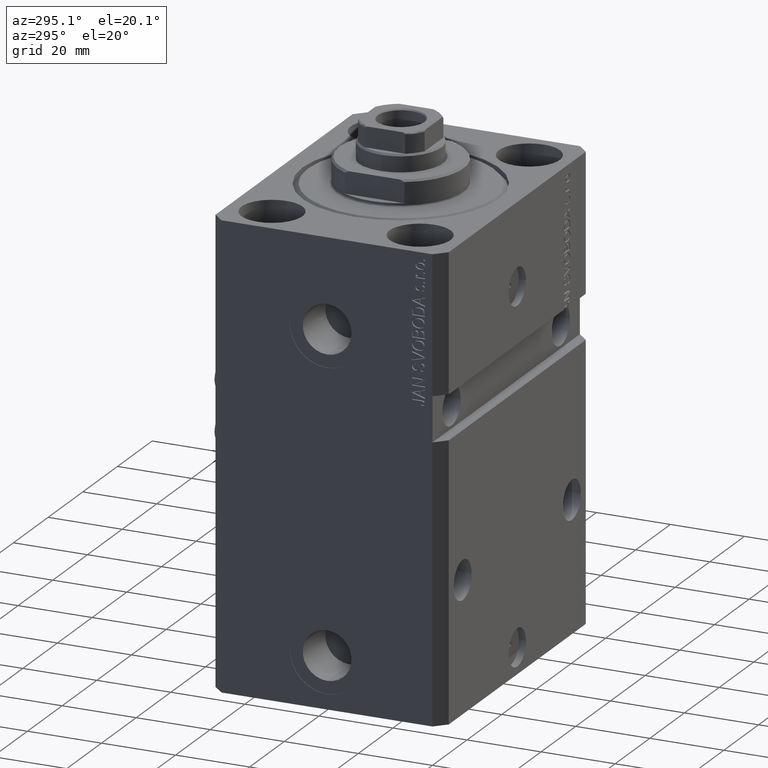
[diagram: clean part render]
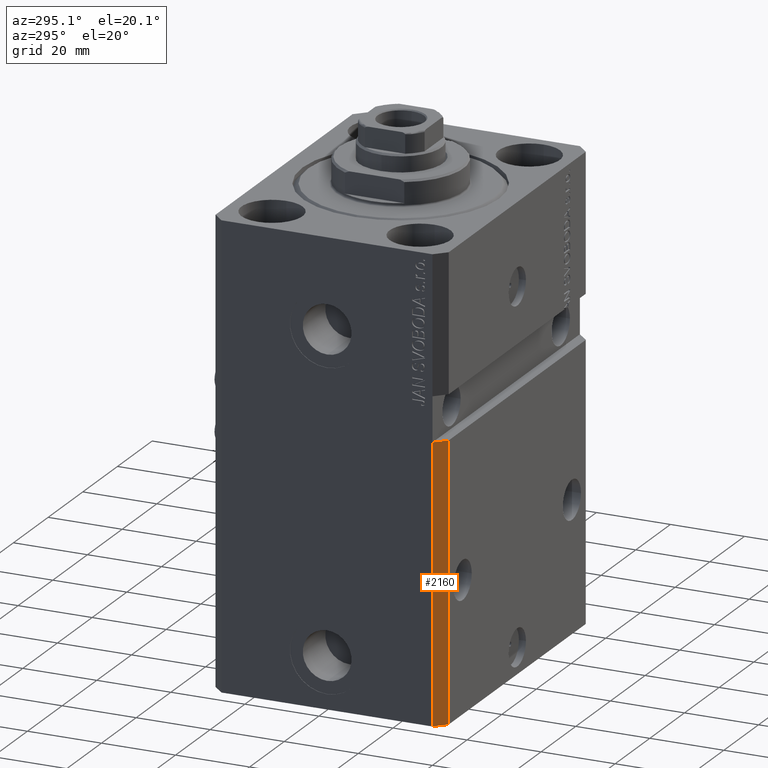
[diagram: same view with one face highlighted and labeled with its STEP entity id]
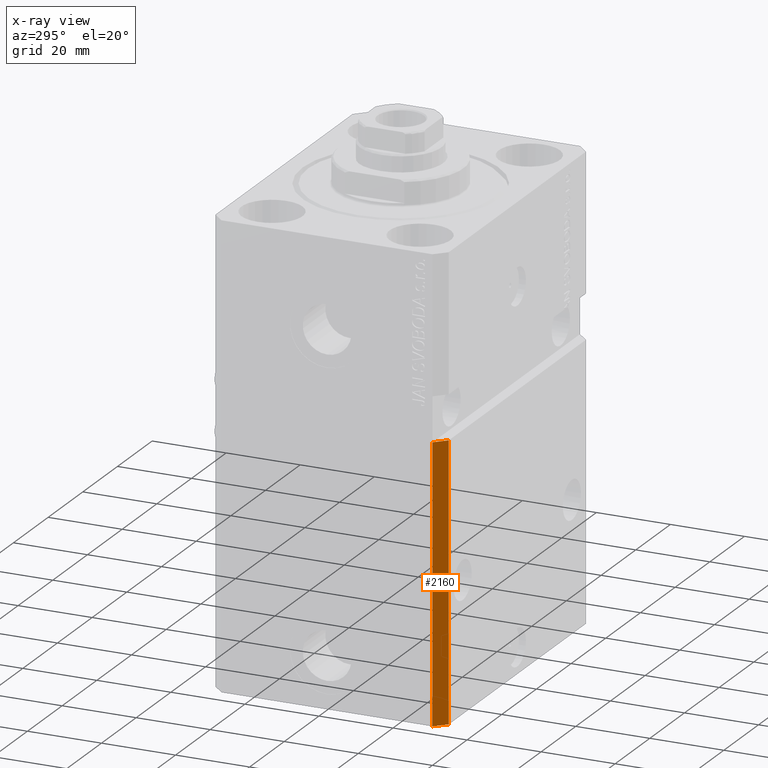
[diagram: x-ray of the same camera — body ghosted, the highlighted face saturated]
A machine part, auxiliary view. The second image highlights one B-rep face of the part: STEP entity #2160.
The next image is the same camera in x-ray: the body ghosted, the highlighted face saturated — about 0% of this face is hidden behind the body in this view.
In plain terms, the highlighted planar face has unit normal (-0.7071, -0.7071, 0).
Its self-contained STEP definition (entity closure, byte-faithful):
#460 = LINE ( 'NONE', #33769, #27978 ) ;
#861 = CARTESIAN_POINT ( 'NONE',  ( -39.50000000000000711, -31.50000000000000000, -123.0000000000000000 ) ) ;
#2160 = ADVANCED_FACE ( 'NONE', ( #13997 ), #28601, .T. ) ;
#2955 = CARTESIAN_POINT ( 'NONE',  ( -39.50000000000000711, -31.50000000000000000, -123.0000000000000000 ) ) ;
#4341 = DIRECTION ( 'NONE',  ( 0.7071067811865472397, -0.7071067811865479058, 1.154479749032186513E-16 ) ) ;
#4518 = LINE ( 'NONE', #861, #22707 ) ;
#5998 = CARTESIAN_POINT ( 'NONE',  ( -42.50000000000000000, -28.50000000000000000, -123.0000000000000000 ) ) ;
#7458 = DIRECTION ( 'NONE',  ( 0.000000000000000000, 0.000000000000000000, 1.000000000000000000 ) ) ;
#8069 = ORIENTED_EDGE ( 'NONE', *, *, #29650, .F. ) ;
#8545 = EDGE_CURVE ( 'NONE', #40215, #25680, #4518, .T. ) ;
#8748 = VERTEX_POINT ( 'NONE', #12849 ) ;
#10712 = EDGE_CURVE ( 'NONE', #8748, #40215, #11239, .T. ) ;
#11239 = LINE ( 'NONE', #36308, #33675 ) ;
#12849 = CARTESIAN_POINT ( 'NONE',  ( -42.50000000000000000, -28.50000000000000000, -123.0000000000000000 ) ) ;
#13544 = CARTESIAN_POINT ( 'NONE',  ( -39.50000000000000000, -31.50000000000000711, -48.99999999999999289 ) ) ;
#13997 = FACE_OUTER_BOUND ( 'NONE', #19574, .T. ) ;
#14711 = ORIENTED_EDGE ( 'NONE', *, *, #19463, .F. ) ;
#15620 = AXIS2_PLACEMENT_3D ( 'NONE', #5998, #29064, #43666 ) ;
#19463 = EDGE_CURVE ( 'NONE', #20149, #25680, #460, .T. ) ;
#19574 = EDGE_LOOP ( 'NONE', ( #14711, #8069, #20769, #37070 ) ) ;
#20149 = VERTEX_POINT ( 'NONE', #36251 ) ;
#20769 = ORIENTED_EDGE ( 'NONE', *, *, #10712, .T. ) ;
#22707 = VECTOR ( 'NONE', #7458, 1000.000000000000000 ) ;
#25274 = CARTESIAN_POINT ( 'NONE',  ( -42.50000000000000000, -28.50000000000000000, -123.0000000000000000 ) ) ;
#25680 = VERTEX_POINT ( 'NONE', #13544 ) ;
#27978 = VECTOR ( 'NONE', #4341, 1000.000000000000000 ) ;
#28601 = PLANE ( 'NONE',  #15620 ) ;
#29064 = DIRECTION ( 'NONE',  ( -0.7071067811865479058, -0.7071067811865472397, 0.000000000000000000 ) ) ;
#29650 = EDGE_CURVE ( 'NONE', #8748, #20149, #32803, .T. ) ;
#32803 = LINE ( 'NONE', #25274, #33612 ) ;
#33612 = VECTOR ( 'NONE', #36444, 1000.000000000000000 ) ;
#33675 = VECTOR ( 'NONE', #47505, 1000.000000000000000 ) ;
#33769 = CARTESIAN_POINT ( 'NONE',  ( -42.50000000000000711, -28.49999999999999289, -48.99999999999998579 ) ) ;
#36251 = CARTESIAN_POINT ( 'NONE',  ( -42.50000000000000000, -28.50000000000000711, -48.99999999999999289 ) ) ;
#36308 = CARTESIAN_POINT ( 'NONE',  ( -42.50000000000000000, -28.50000000000000000, -123.0000000000000000 ) ) ;
#36444 = DIRECTION ( 'NONE',  ( 0.000000000000000000, 0.000000000000000000, 1.000000000000000000 ) ) ;
#37070 = ORIENTED_EDGE ( 'NONE', *, *, #8545, .T. ) ;
#40215 = VERTEX_POINT ( 'NONE', #2955 ) ;
#43666 = DIRECTION ( 'NONE',  ( 0.7071067811865472397, -0.7071067811865479058, 0.000000000000000000 ) ) ;
#47505 = DIRECTION ( 'NONE',  ( 0.7071067811865471286, -0.7071067811865479058, 0.000000000000000000 ) ) ;